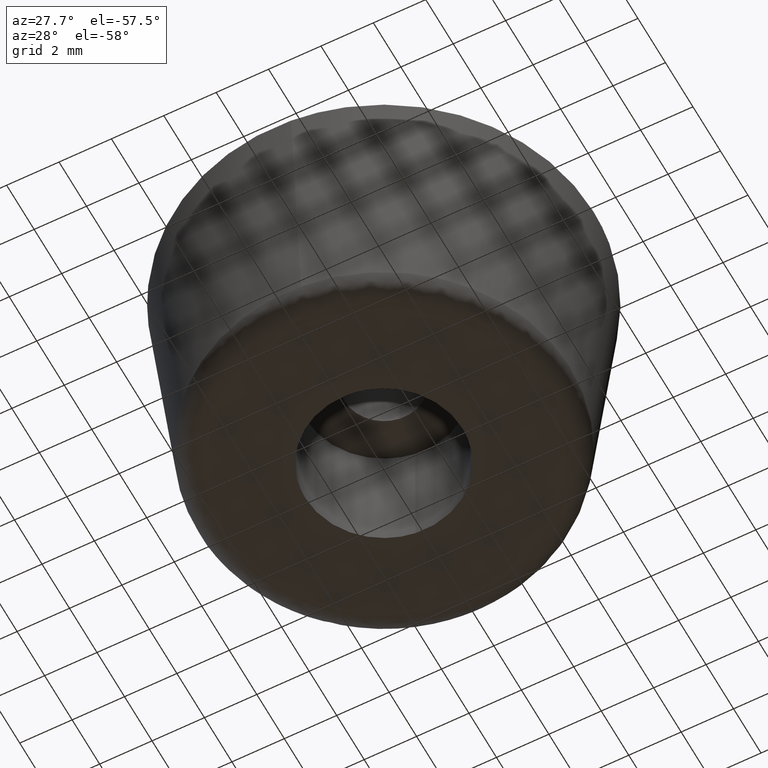
[diagram: clean part render]
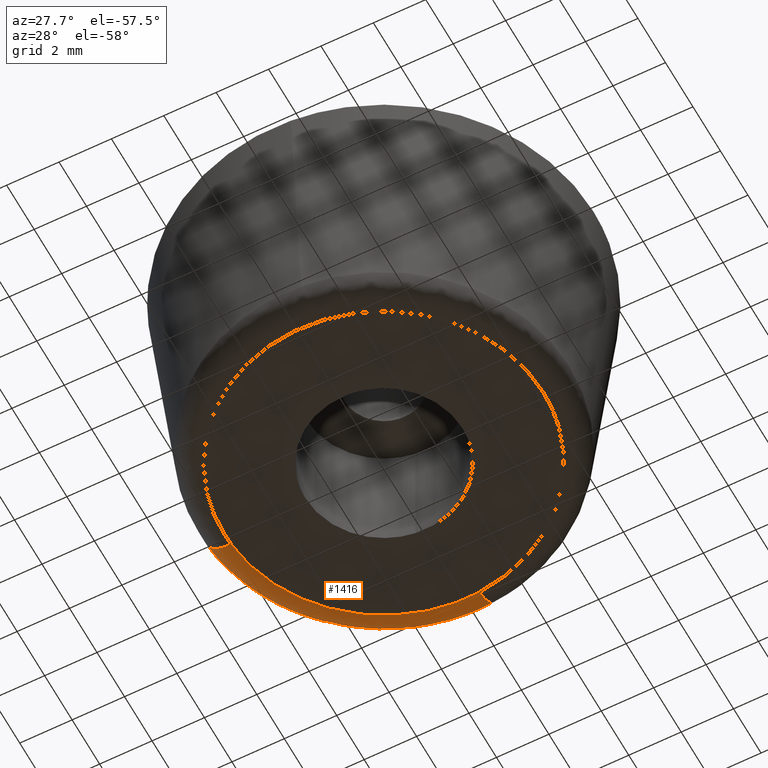
[diagram: same view with one face highlighted and labeled with its STEP entity id]
A machine part, auxiliary view. The second image highlights one B-rep face of the part: STEP entity #1416.
In plain terms, the highlighted face is a freeform B-spline surface patch.
Its self-contained STEP definition (entity closure, byte-faithful):
#661=CARTESIAN_POINT('',(0.534070790018086,7.069906096536348,0.900497036499555));
#662=VERTEX_POINT('',#661);
#676=CARTESIAN_POINT('',(-7.069906096536702,0.534070790020124,0.900497036504615));
#677=VERTEX_POINT('',#676);
#678=CARTESIAN_POINT('',(-7.069906096536702,0.534070790020124,0.900497036504615));
#679=CARTESIAN_POINT('',(-6.574658442849245,7.090050000000001,0.900497000000030));
#680=CARTESIAN_POINT('',(0.0,7.090050000000000,0.900497000000030));
#681=CARTESIAN_POINT('',(0.267415285516868,7.090049999999999,0.900497000000030));
#682=CARTESIAN_POINT('',(0.534070790018086,7.069906096536348,0.900497036499555));
#690=(BOUNDED_CURVE()B_SPLINE_CURVE(2,(#678,#679,#680,#681,#682),.UNSPECIFIED.,.F.,.U.)B_SPLINE_CURVE_WITH_KNOTS((3,2,3),(0.013129840737809,0.250000000000000,0.263129840737712),.UNSPECIFIED.)CURVE()GEOMETRIC_REPRESENTATION_ITEM()RATIONAL_B_SPLINE_CURVE((0.970850634526890,0.722489346451367,1.0,0.984617434735295,0.970850634527094))REPRESENTATION_ITEM(''));
#691=EDGE_CURVE('',#677,#662,#690,.T.);
#1296=CARTESIAN_POINT('',(0.459117783654933,6.077695463241705,2.831681E-014));
#1297=VERTEX_POINT('',#1296);
#1313=CARTESIAN_POINT('',(0.534070790018086,7.069906096536348,0.900497036499554));
#1314=CARTESIAN_POINT('',(0.527287660246027,6.980112587104808,4.503731E-010));
#1315=CARTESIAN_POINT('',(0.459117783654933,6.077695463241705,2.831681E-014));
#1323=(BOUNDED_CURVE()B_SPLINE_CURVE(2,(#1313,#1314,#1315),.UNSPECIFIED.,.F.,.U.)B_SPLINE_CURVE_WITH_KNOTS((3,3),(-1.710024838795867,-0.277482477000941),.UNSPECIFIED.)CURVE()GEOMETRIC_REPRESENTATION_ITEM()RATIONAL_B_SPLINE_CURVE((0.888708540586755,0.660422352911739,0.892725170843537))REPRESENTATION_ITEM(''));
#1324=EDGE_CURVE('',#662,#1297,#1323,.T.);
#1331=CARTESIAN_POINT('',(-6.077695463252528,0.459117783657172,2.832610E-014));
#1332=VERTEX_POINT('',#1331);
#1333=CARTESIAN_POINT('',(-7.069906096536702,0.534070790020124,0.900497036504615));
#1334=CARTESIAN_POINT('',(-6.980112587116011,0.527287660246874,4.702132E-010));
#1335=CARTESIAN_POINT('',(-6.077695463252528,0.459117783657172,2.832610E-014));
#1343=(BOUNDED_CURVE()B_SPLINE_CURVE(2,(#1333,#1334,#1335),.UNSPECIFIED.,.F.,.U.)B_SPLINE_CURVE_WITH_KNOTS((3,3),(-1.710024838806701,-0.277482477024396),.UNSPECIFIED.)CURVE()GEOMETRIC_REPRESENTATION_ITEM()RATIONAL_B_SPLINE_CURVE((0.888708540590208,0.660422352913720,0.892725170835931))REPRESENTATION_ITEM(''));
#1344=EDGE_CURVE('',#677,#1332,#1343,.T.);
#1379=CARTESIAN_POINT('',(-7.074299600410032,0.534402681565744,0.966647677319547));
#1380=CARTESIAN_POINT('',(-6.539896918844287,7.608702281975774,0.966647677319547));
#1381=CARTESIAN_POINT('',(0.534402681565744,7.074299600410032,0.966647677319547));
#1382=CARTESIAN_POINT('',(-7.039938332801738,0.531806982402705,-0.065964016378143));
#1383=CARTESIAN_POINT('',(-6.508131350399031,7.571745315204443,-0.065964016378143));
#1384=CARTESIAN_POINT('',(0.531806982402705,7.039938332801738,-0.065964016378143));
#1385=CARTESIAN_POINT('',(-6.011930319976509,0.454149790912959,0.002177237675855));
#1386=CARTESIAN_POINT('',(-5.557780529063549,6.466080110889466,0.002177237675855));
#1387=CARTESIAN_POINT('',(0.454149790912959,6.011930319976509,0.002177237675855));
#1395=(BOUNDED_SURFACE()B_SPLINE_SURFACE(2,2,((#1379,#1382,#1385),(#1380,#1383,#1386),(#1381,#1384,#1387)),.UNSPECIFIED.,.F.,.F.,.U.)B_SPLINE_SURFACE_WITH_KNOTS((3,3),(3,3),(0.0,11.754479002351809),(0.0,1.695224280064875),.UNSPECIFIED.)GEOMETRIC_REPRESENTATION_ITEM()RATIONAL_B_SPLINE_SURFACE(((0.912663501088727,0.636266745643185,0.917081425392979),(0.645350550561295,0.449908530487793,0.648474494795601),(0.912663501088727,0.636266745643185,0.917081425392979)))REPRESENTATION_ITEM('')SURFACE());
#1396=CARTESIAN_POINT('',(-6.077695463252530,0.459117783657172,2.832610E-014));
#1397=CARTESIAN_POINT('',(-5.651951975627436,6.095012000000001,2.842171E-014));
#1398=CARTESIAN_POINT('',(0.0,6.095012000000001,2.842171E-014));
#1399=CARTESIAN_POINT('',(0.229885455583017,6.095012000000001,2.842171E-014));
#1400=CARTESIAN_POINT('',(0.459117783654933,6.077695463241705,2.831681E-014));
#1408=(BOUNDED_CURVE()B_SPLINE_CURVE(2,(#1396,#1397,#1398,#1399,#1400),.UNSPECIFIED.,.F.,.U.)B_SPLINE_CURVE_WITH_KNOTS((3,2,3),(0.013129840738962,0.250000000000000,0.263129840738883),.UNSPECIFIED.)CURVE()GEOMETRIC_REPRESENTATION_ITEM()RATIONAL_B_SPLINE_CURVE((0.970850634524470,0.722489346452718,1.0,0.984617434733923,0.970850634524638))REPRESENTATION_ITEM(''));
#1409=EDGE_CURVE('',#1332,#1297,#1408,.T.);
#1410=ORIENTED_EDGE('',*,*,#1409,.F.);
#1411=ORIENTED_EDGE('',*,*,#1344,.F.);
#1412=ORIENTED_EDGE('',*,*,#691,.T.);
#1413=ORIENTED_EDGE('',*,*,#1324,.T.);
#1414=EDGE_LOOP('',(#1410,#1411,#1412,#1413));
#1415=FACE_OUTER_BOUND('',#1414,.T.);
#1416=ADVANCED_FACE('',(#1415),#1395,.T.);